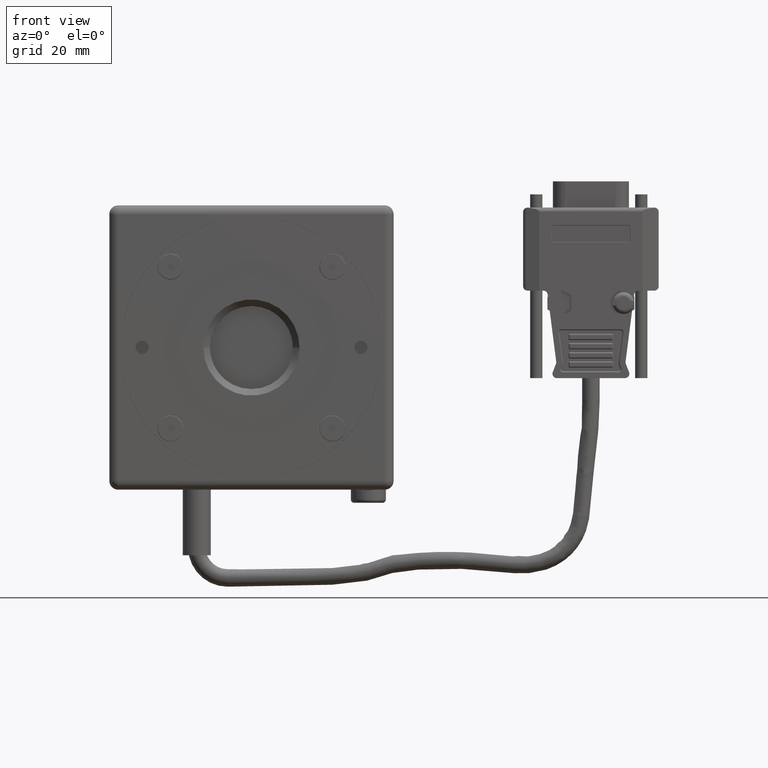
[diagram: clean part render]
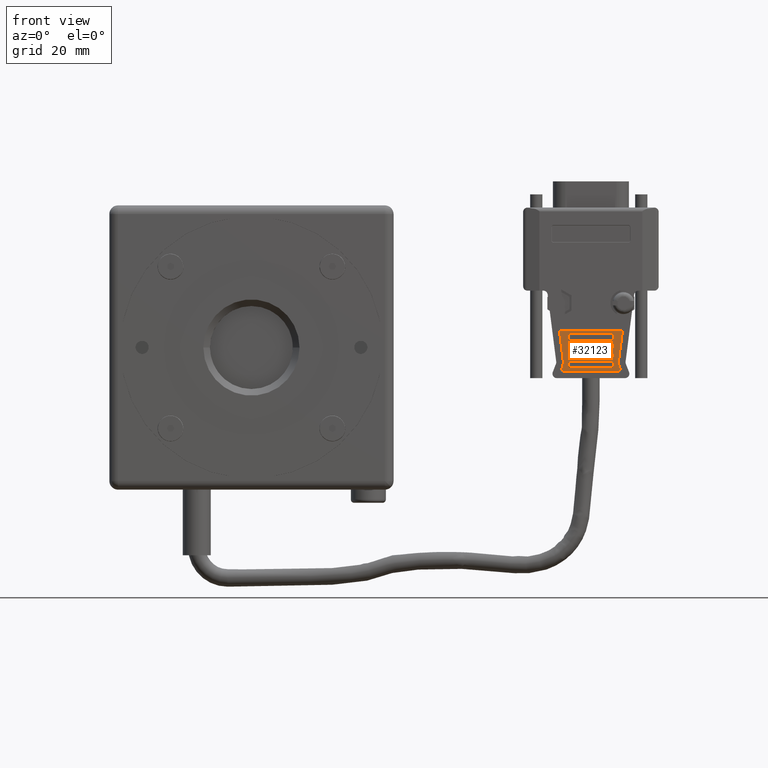
[diagram: same view with one face highlighted and labeled with its STEP entity id]
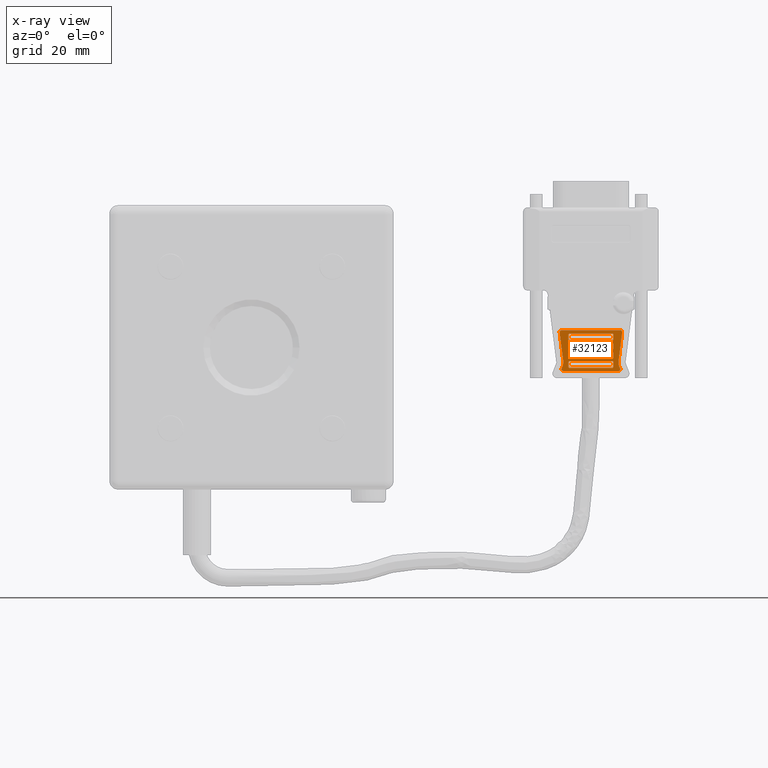
[diagram: x-ray of the same camera — body ghosted, the highlighted face saturated]
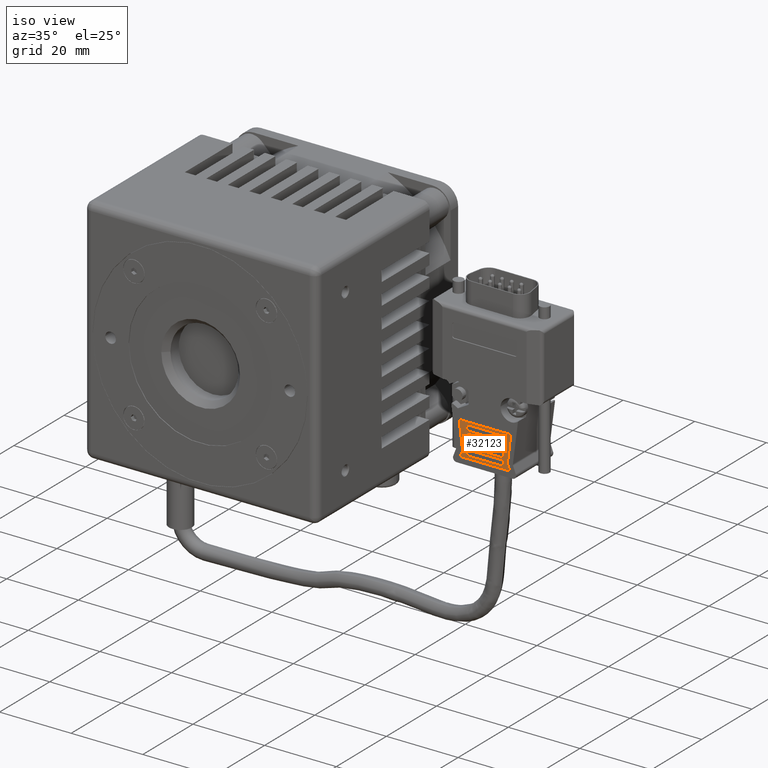
[diagram: same view with one face highlighted and labeled with its STEP entity id]
A machine part, front view. The second image highlights one B-rep face of the part: STEP entity #32123.
The next image is the same camera in x-ray: the body ghosted, the highlighted face saturated — about 0% of this face is hidden behind the body in this view.
A second angle (iso view) of the same face is appended — the face is thin or edge-on in the first view.
In plain terms, the highlighted planar face has unit normal (0, -1, 0).
Its self-contained STEP definition (entity closure, byte-faithful):
#9 = ORIENTED_EDGE ( 'NONE', *, *, #18562, .F. ) ;
#27 = DIRECTION ( 'NONE',  ( 0.000000000000000000, 1.000000000000000000, 0.000000000000000000 ) ) ;
#320 = CARTESIAN_POINT ( 'NONE',  ( 82.44909196436888976, 2.700000000000000178, -3.123188214215649960 ) ) ;
#542 = VECTOR ( 'NONE', #24441, 1000.000000000000114 ) ;
#671 = CARTESIAN_POINT ( 'NONE',  ( 82.70260010608919288, 2.700000000000000178, 1.007115293119899890 ) ) ;
#838 = EDGE_CURVE ( 'NONE', #18890, #22466, #35391, .T. ) ;
#904 = EDGE_CURVE ( 'NONE', #31604, #3951, #1273, .T. ) ;
#1060 = CARTESIAN_POINT ( 'NONE',  ( 82.44909196436938714, 2.700000000000000178, 1.076811785784349995 ) ) ;
#1114 = DIRECTION ( 'NONE',  ( -0.1262542796726679462, 0.000000000000000000, 0.9919979117237776034 ) ) ;
#1273 = LINE ( 'NONE', #36434, #39668 ) ;
#1545 = VERTEX_POINT ( 'NONE', #21794 ) ;
#1959 = B_SPLINE_CURVE_WITH_KNOTS ( 'NONE', 3,
 ( #27415, #18348, #15185, #37093, #31002 ),
 .UNSPECIFIED., .F., .F.,
 ( 4, 1, 4 ),
 ( 1.739055795549800029E-15, 0.02539840162488149825, 0.05079680324976119932 ),
 .UNSPECIFIED. ) ;
#2160 = VECTOR ( 'NONE', #20354, 1000.000000000000000 ) ;
#2185 = VERTEX_POINT ( 'NONE', #13410 ) ;
#2490 = CARTESIAN_POINT ( 'NONE',  ( 85.30056038381469818, 2.700000000000000178, 7.594317709665400429 ) ) ;
#3165 = CARTESIAN_POINT ( 'NONE',  ( 72.71055135265889646, 2.700000000000000178, -3.123188214215659730 ) ) ;
#3256 = EDGE_CURVE ( 'NONE', #21083, #21537, #27272, .T. ) ;
#3400 = CARTESIAN_POINT ( 'NONE',  ( 74.04217207136910872, 2.700000000000000178, 3.206717166536390273 ) ) ;
#3501 = CIRCLE ( 'NONE', #25692, 0.3803847577293482662 ) ;
#3512 = CARTESIAN_POINT ( 'NONE',  ( 82.77229704512579644, 2.700000000000000178, -4.339213618000540507 ) ) ;
#3666 = CARTESIAN_POINT ( 'NONE',  ( 82.77229704512579644, 2.700000000000000178, -4.339213618000540507 ) ) ;
#3782 = CARTESIAN_POINT ( 'NONE',  ( 72.47200761065160179, 2.700000000000000178, -3.446393294972040167 ) ) ;
#3822 = EDGE_CURVE ( 'NONE', #20085, #22674, #30910, .T. ) ;
#3942 = ORIENTED_EDGE ( 'NONE', *, *, #3822, .F. ) ;
#3951 = VERTEX_POINT ( 'NONE', #39534 ) ;
#4128 = DIRECTION ( 'NONE',  ( -0.7504179767545040569, 0.000000000000000000, 0.6609635845972732238 ) ) ;
#4279 = CARTESIAN_POINT ( 'NONE',  ( 82.44909196436888976, 2.700000000000000178, -2.562418698756979918 ) ) ;
#4315 = CARTESIAN_POINT ( 'NONE',  ( 82.77229704512579644, 2.700000000000000178, 8.230514021191238427 ) ) ;
#4339 = CARTESIAN_POINT ( 'NONE',  ( 72.54170407698350687, 2.700000000000000178, 3.107114873108239639 ) ) ;
#4370 = CARTESIAN_POINT ( 'NONE',  ( 82.77229704512579644, 2.700000000000000178, -1.346393294972539900 ) ) ;
#4480 = CARTESIAN_POINT ( 'NONE',  ( 72.79521269140801110, 2.700000000000000178, 1.076811785784340003 ) ) ;
#4557 = DIRECTION ( 'NONE',  ( 0.000000000000000000, -1.000000000000000000, 0.000000000000000000 ) ) ;
#4558 = CARTESIAN_POINT ( 'NONE',  ( 72.47200761065160179, 2.700000000000000178, -0.1392136180000810020 ) ) ;
#4823 = B_SPLINE_CURVE_WITH_KNOTS ( 'NONE', 3,
 ( #39088, #22469, #10239, #35910, #3512 ),
 .UNSPECIFIED., .F., .F.,
 ( 4, 1, 4 ),
 ( 4.116260013549320129E-33, 0.02539840162487739736, 0.05079680324975479472 ),
 .UNSPECIFIED. ) ;
#4830 = EDGE_LOOP ( 'NONE', ( #23595, #20390, #24953, #27848, #32639, #34149, #3942, #5043 ) ) ;
#4926 = EDGE_CURVE ( 'NONE', #3951, #18890, #3501, .T. ) ;
#5020 = EDGE_CURVE ( 'NONE', #24175, #1545, #5726, .T. ) ;
#5043 = ORIENTED_EDGE ( 'NONE', *, *, #9184, .F. ) ;
#5115 = EDGE_CURVE ( 'NONE', #32147, #2185, #32656, .T. ) ;
#5257 = DIRECTION ( 'NONE',  ( 1.000000000000000000, 0.000000000000000000, -8.618799168745898711E-17 ) ) ;
#5263 = ORIENTED_EDGE ( 'NONE', *, *, #40630, .F. ) ;
#5585 = CARTESIAN_POINT ( 'NONE',  ( 82.77229704512579644, 2.700000000000000178, -2.239213618000579942 ) ) ;
#5632 = CARTESIAN_POINT ( 'NONE',  ( 72.71055135265839908, 2.700000000000000178, -2.562418698756850244 ) ) ;
#5641 = EDGE_CURVE ( 'NONE', #17230, #27794, #37424, .T. ) ;
#5726 = LINE ( 'NONE', #18574, #14257 ) ;
#5920 = CARTESIAN_POINT ( 'NONE',  ( 72.47200761065160179, 2.700000000000000178, 1.876125043250320035 ) ) ;
#5952 = LINE ( 'NONE', #19647, #40351 ) ;
#6346 = EDGE_CURVE ( 'NONE', #23102, #27496, #31017, .T. ) ;
#6366 = CARTESIAN_POINT ( 'NONE',  ( 82.77229704512579644, 2.700000000000000178, 0.8382680437770479998 ) ) ;
#6532 = CARTESIAN_POINT ( 'NONE',  ( 84.10192827455099973, 2.700000000000000178, -4.311271660290279861 ) ) ;
#6703 = DIRECTION ( 'NONE',  ( 0.000000000000000000, 0.000000000000000000, -1.000000000000000000 ) ) ;
#6709 = VERTEX_POINT ( 'NONE', #18107 ) ;
#6928 = EDGE_CURVE ( 'NONE', #33162, #32722, #26283, .T. ) ;
#6948 = CARTESIAN_POINT ( 'NONE',  ( 72.47200761065170127, 2.700000000000000178, -3.361731956222449913 ) ) ;
#6965 = CARTESIAN_POINT ( 'NONE',  ( 72.47200761065170127, 2.700000000000000178, 4.630514021191230789 ) ) ;
#7002 = EDGE_CURVE ( 'NONE', #33224, #32649, #19338, .T. ) ;
#7111 = CARTESIAN_POINT ( 'NONE',  ( 70.93230020184201123, 2.700000000000000178, -4.855913607000769794 ) ) ;
#7150 = DIRECTION ( 'NONE',  ( 0.7504179767545079427, 0.000000000000000000, 0.6609635845972686718 ) ) ;
#7287 = VECTOR ( 'NONE', #24277, 1000.000000000000000 ) ;
#7359 = CARTESIAN_POINT ( 'NONE',  ( 82.77229704512579644, 2.700000000000000178, -0.1392136180005850155 ) ) ;
#7426 = CARTESIAN_POINT ( 'NONE',  ( 72.79521269140850848, 2.700000000000000178, -3.123188214215649960 ) ) ;
#7539 = ORIENTED_EDGE ( 'NONE', *, *, #9166, .F. ) ;
#7648 = DIRECTION ( 'NONE',  ( -9.868649107779170475E-15, 0.000000000000000000, -1.000000000000000000 ) ) ;
#7829 = VECTOR ( 'NONE', #24088, 1000.000000000000000 ) ;
#7898 = DIRECTION ( 'NONE',  ( -1.000000000000000000, 0.000000000000000000, 0.000000000000000000 ) ) ;
#8023 = DIRECTION ( 'NONE',  ( -1.000000000000000000, 0.000000000000000000, 1.178317357060010011E-12 ) ) ;
#8261 = CARTESIAN_POINT ( 'NONE',  ( 84.77426902767309969, 2.700000000000000178, 3.459171339911460308 ) ) ;
#8380 = VERTEX_POINT ( 'NONE', #15116 ) ;
#8495 = CARTESIAN_POINT ( 'NONE',  ( 72.47200761065170127, 2.700000000000000178, -1.261731956222539974 ) ) ;
#8525 = ORIENTED_EDGE ( 'NONE', *, *, #26338, .F. ) ;
#8582 = ORIENTED_EDGE ( 'NONE', *, *, #12566, .F. ) ;
#8652 = CARTESIAN_POINT ( 'NONE',  ( 82.77229704512579644, 2.700000000000000178, -1.346393294972539900 ) ) ;
#8847 = EDGE_CURVE ( 'NONE', #13585, #33162, #38489, .T. ) ;
#8866 = ORIENTED_EDGE ( 'NONE', *, *, #30942, .F. ) ;
#8884 = CARTESIAN_POINT ( 'NONE',  ( 82.44909196436888976, 2.700000000000000178, -3.123188214215649960 ) ) ;
#9003 = ORIENTED_EDGE ( 'NONE', *, *, #3256, .F. ) ;
#9166 = EDGE_CURVE ( 'NONE', #20459, #6709, #23867, .T. ) ;
#9184 = EDGE_CURVE ( 'NONE', #11511, #20085, #36493, .T. ) ;
#9305 = CARTESIAN_POINT ( 'NONE',  ( 72.54170451774228923, 2.700000000000000178, 1.707277761995610099 ) ) ;
#9315 = DIRECTION ( 'NONE',  ( -0.8245823391861011320, 0.000000000000000000, -0.5657419605282764108 ) ) ;
#9878 = CARTESIAN_POINT ( 'NONE',  ( 82.77229704512579644, 2.700000000000000178, 0.7536067050274590784 ) ) ;
#9923 = VERTEX_POINT ( 'NONE', #31181 ) ;
#9945 = CARTESIAN_POINT ( 'NONE',  ( 82.77229704512579644, 2.700000000000000178, 0.7536067050274590784 ) ) ;
#9954 = VERTEX_POINT ( 'NONE', #21908 ) ;
#10239 = CARTESIAN_POINT ( 'NONE',  ( 82.70260054171910724, 2.700000000000000178, -4.592721748966200224 ) ) ;
#10338 = FACE_BOUND ( 'NONE', #4830, .T. ) ;
#10389 = EDGE_CURVE ( 'NONE', #34865, #31777, #21666, .T. ) ;
#10669 = DIRECTION ( 'NONE',  ( -0.9927162448375094206, 0.000000000000000000, -0.1204759612358992094 ) ) ;
#10792 = ORIENTED_EDGE ( 'NONE', *, *, #17807, .F. ) ;
#10946 = DIRECTION ( 'NONE',  ( 1.000000000000000000, 0.000000000000000000, 2.872933056248629617E-17 ) ) ;
#10957 = EDGE_LOOP ( 'NONE', ( #13677, #14443, #23103, #41669, #8525, #36402, #30400, #17669 ) ) ;
#11511 = VERTEX_POINT ( 'NONE', #41225 ) ;
#11690 = CARTESIAN_POINT ( 'NONE',  ( 82.77229704512568276, 2.700000000000000178, -2.323874956750170195 ) ) ;
#11787 = CARTESIAN_POINT ( 'NONE',  ( 82.53375330311899916, 2.700000000000000178, 3.176811785784219744 ) ) ;
#12102 = VERTEX_POINT ( 'NONE', #29166 ) ;
#12222 = CIRCLE ( 'NONE', #26359, 0.3803847577293278381 ) ;
#12329 = DIRECTION ( 'NONE',  ( -1.000000000000000000, 0.000000000000000000, 0.000000000000000000 ) ) ;
#12453 = ORIENTED_EDGE ( 'NONE', *, *, #838, .F. ) ;
#12566 = EDGE_CURVE ( 'NONE', #17790, #14059, #5952, .T. ) ;
#12781 = CARTESIAN_POINT ( 'NONE',  ( 72.54170452099710076, 2.700000000000000178, -2.492722234753269817 ) ) ;
#12885 = CIRCLE ( 'NONE', #16256, 2.619615242287314238 ) ;
#13004 = ORIENTED_EDGE ( 'NONE', *, *, #23831, .F. ) ;
#13022 = CARTESIAN_POINT ( 'NONE',  ( 72.47200761065160179, 2.700000000000000178, 1.960786381999910066 ) ) ;
#13062 = VECTOR ( 'NONE', #37357, 1000.000000000000000 ) ;
#13343 = VECTOR ( 'NONE', #10946, 1000.000000000000000 ) ;
#13410 = CARTESIAN_POINT ( 'NONE',  ( 72.47200761065160179, 2.700000000000000178, -4.339213618000079542 ) ) ;
#13585 = VERTEX_POINT ( 'NONE', #4279 ) ;
#13675 = ORIENTED_EDGE ( 'NONE', *, *, #39497, .F. ) ;
#13677 = ORIENTED_EDGE ( 'NONE', *, *, #41057, .F. ) ;
#13924 = EDGE_CURVE ( 'NONE', #32649, #23102, #14501, .T. ) ;
#14059 = VERTEX_POINT ( 'NONE', #32876 ) ;
#14091 = CARTESIAN_POINT ( 'NONE',  ( 82.44909196436888976, 2.700000000000000178, -0.4624186987569779972 ) ) ;
#14257 = VECTOR ( 'NONE', #31423, 1000.000000000000000 ) ;
#14346 = FACE_BOUND ( 'NONE', #36842, .T. ) ;
#14387 = CARTESIAN_POINT ( 'NONE',  ( 72.47200761065160179, 2.700000000000000178, 0.7536067050279570134 ) ) ;
#14443 = ORIENTED_EDGE ( 'NONE', *, *, #6346, .F. ) ;
#14501 = B_SPLINE_CURVE_WITH_KNOTS ( 'NONE', 3,
 ( #9945, #6366, #671, #39002, #25313 ),
 .UNSPECIFIED., .F., .F.,
 ( 4, 1, 4 ),
 ( 1.086390228899419965E-15, 0.02539840162487999944, 0.05079680324975899969 ),
 .UNSPECIFIED. ) ;
#14650 = CARTESIAN_POINT ( 'NONE',  ( 82.77229704512579644, 2.700000000000000178, -2.239213618000579942 ) ) ;
#14745 = VERTEX_POINT ( 'NONE', #33347 ) ;
#14765 = ORIENTED_EDGE ( 'NONE', *, *, #5641, .F. ) ;
#14938 = CARTESIAN_POINT ( 'NONE',  ( 72.47200761065160179, 2.700000000000000178, -2.239213618000090111 ) ) ;
#14960 = LINE ( 'NONE', #27178, #542 ) ;
#15062 = CARTESIAN_POINT ( 'NONE',  ( 82.53375330311850178, 2.700000000000000178, -2.562418698756979918 ) ) ;
#15116 = CARTESIAN_POINT ( 'NONE',  ( 84.31200445393540122, 2.700000000000000178, -4.855913607000769794 ) ) ;
#15133 = ORIENTED_EDGE ( 'NONE', *, *, #21788, .F. ) ;
#15165 = CARTESIAN_POINT ( 'NONE',  ( 82.70260010466489575, 2.700000000000000178, -1.092884708302980012 ) ) ;
#15185 = CARTESIAN_POINT ( 'NONE',  ( 72.54170451274708853, 2.700000000000000178, -0.3927222429944329796 ) ) ;
#15522 = CARTESIAN_POINT ( 'NONE',  ( 72.79521269140801110, 2.700000000000000178, 1.637581301243020038 ) ) ;
#15714 = VERTEX_POINT ( 'NONE', #14938 ) ;
#15724 = CARTESIAN_POINT ( 'NONE',  ( 72.47200761065160179, 2.700000000000000178, -2.323874956749679921 ) ) ;
#15994 = ORIENTED_EDGE ( 'NONE', *, *, #40617, .F. ) ;
#16038 = VERTEX_POINT ( 'NONE', #40571 ) ;
#16092 = CIRCLE ( 'NONE', #19466, 2.619615242287306689 ) ;
#16243 = DIRECTION ( 'NONE',  ( 0.3598720681994608817, 0.000000000000000000, 0.9330016583746475467 ) ) ;
#16256 = AXIS2_PLACEMENT_3D ( 'NONE', #16756, #26252, #32372 ) ;
#16397 = CARTESIAN_POINT ( 'NONE',  ( 82.77229704512579644, 2.700000000000000178, 1.960786381999420236 ) ) ;
#16474 = VECTOR ( 'NONE', #33282, 1000.000000000000000 ) ;
#16499 = EDGE_CURVE ( 'NONE', #21537, #32147, #41276, .T. ) ;
#16708 = EDGE_CURVE ( 'NONE', #22674, #12102, #33251, .T. ) ;
#16756 = CARTESIAN_POINT ( 'NONE',  ( 68.69827101585771345, 2.700000000000000178, -3.368545305190319805 ) ) ;
#16992 = VERTEX_POINT ( 'NONE', #4558 ) ;
#17230 = VERTEX_POINT ( 'NONE', #3666 ) ;
#17302 = EDGE_CURVE ( 'NONE', #19322, #34865, #37575, .T. ) ;
#17320 = VERTEX_POINT ( 'NONE', #6532 ) ;
#17331 = CARTESIAN_POINT ( 'NONE',  ( 70.25321923480629493, 2.700000000000000178, 5.162728715841659266 ) ) ;
#17549 = CARTESIAN_POINT ( 'NONE',  ( 72.79521269140801110, 2.700000000000000178, -1.023188214215659864 ) ) ;
#17553 = CARTESIAN_POINT ( 'NONE',  ( 72.47200761065160179, 2.700000000000000178, 7.780514021191230256 ) ) ;
#17566 = LINE ( 'NONE', #29977, #7829 ) ;
#17669 = ORIENTED_EDGE ( 'NONE', *, *, #36385, .F. ) ;
#17772 = EDGE_CURVE ( 'NONE', #9954, #11511, #33043, .T. ) ;
#17790 = VERTEX_POINT ( 'NONE', #23737 ) ;
#17807 = EDGE_CURVE ( 'NONE', #31777, #17320, #16092, .T. ) ;
#17843 = CARTESIAN_POINT ( 'NONE',  ( 72.79521269140801110, 2.700000000000000178, -4.662418698756980007 ) ) ;
#18033 = VECTOR ( 'NONE', #35456, 1000.000000000000000 ) ;
#18107 = CARTESIAN_POINT ( 'NONE',  ( 70.47003562810438382, 2.700000000000000178, 3.459171339911460308 ) ) ;
#18284 = CARTESIAN_POINT ( 'NONE',  ( 72.47200761065160179, 2.700000000000000178, -2.239213618000090111 ) ) ;
#18327 = CARTESIAN_POINT ( 'NONE',  ( 82.77229704512579644, 2.700000000000000178, -1.261731956222949869 ) ) ;
#18348 = CARTESIAN_POINT ( 'NONE',  ( 72.47200761065160179, 2.700000000000000178, -0.2238749567496879922 ) ) ;
#18562 = EDGE_CURVE ( 'NONE', #14745, #13585, #27601, .T. ) ;
#18574 = CARTESIAN_POINT ( 'NONE',  ( 76.77618048058810984, 2.700000000000000178, -4.662418698756959579 ) ) ;
#18772 = CARTESIAN_POINT ( 'NONE',  ( 72.79521269140801110, 2.700000000000000178, 1.637581301243020038 ) ) ;
#18874 = LINE ( 'NONE', #41189, #28220 ) ;
#18890 = VERTEX_POINT ( 'NONE', #7111 ) ;
#19017 = B_SPLINE_CURVE_WITH_KNOTS ( 'NONE', 3,
 ( #40868, #33925, #24666, #30780, #8884 ),
 .UNSPECIFIED., .F., .F.,
 ( 4, 1, 4 ),
 ( 1.832030531312000143E-15, 0.02539840162490549988, 0.05079680324980909850 ),
 .UNSPECIFIED. ) ;
#19072 = ORIENTED_EDGE ( 'NONE', *, *, #5020, .F. ) ;
#19127 = VERTEX_POINT ( 'NONE', #21224 ) ;
#19176 = CARTESIAN_POINT ( 'NONE',  ( 84.39692814235399965, 2.700000000000000178, 3.507196543497050012 ) ) ;
#19177 = CARTESIAN_POINT ( 'NONE',  ( 72.79521269140850848, 2.700000000000000178, -3.123188214215649960 ) ) ;
#19240 = EDGE_LOOP ( 'NONE', ( #33479, #26124, #15133, #31177, #10792, #32569, #41200, #28250, #28656, #7539, #15994, #12453 ) ) ;
#19322 = VERTEX_POINT ( 'NONE', #19714 ) ;
#19330 = ORIENTED_EDGE ( 'NONE', *, *, #16499, .F. ) ;
#19338 = LINE ( 'NONE', #39316, #33945 ) ;
#19413 = VERTEX_POINT ( 'NONE', #34421 ) ;
#19466 = AXIS2_PLACEMENT_3D ( 'NONE', #39743, #4557, #10669 ) ;
#19579 = CARTESIAN_POINT ( 'NONE',  ( 82.77229704512568276, 2.700000000000000178, 1.876125043249830204 ) ) ;
#19647 = CARTESIAN_POINT ( 'NONE',  ( 71.94565100562159898, 2.700000000000000178, -1.023188214215649872 ) ) ;
#19656 = CARTESIAN_POINT ( 'NONE',  ( 72.79521269140801110, 2.700000000000000178, 1.076811785784340003 ) ) ;
#19714 = CARTESIAN_POINT ( 'NONE',  ( 84.39692814235399965, 2.700000000000000178, 3.887581301226379793 ) ) ;
#19758 = EDGE_CURVE ( 'NONE', #17320, #8380, #14960, .T. ) ;
#19980 = EDGE_CURVE ( 'NONE', #32722, #17790, #23930, .T. ) ;
#20042 = CARTESIAN_POINT ( 'NONE',  ( 77.62215232788929598, 2.700000000000000178, -0.6127071908090540031 ) ) ;
#20085 = VERTEX_POINT ( 'NONE', #13022 ) ;
#20354 = DIRECTION ( 'NONE',  ( 0.000000000000000000, 0.000000000000000000, 1.000000000000000000 ) ) ;
#20376 = CARTESIAN_POINT ( 'NONE',  ( 72.79521269140801110, 2.700000000000000178, 3.176811785784349862 ) ) ;
#20390 = ORIENTED_EDGE ( 'NONE', *, *, #21151, .F. ) ;
#20459 = VERTEX_POINT ( 'NONE', #22465 ) ;
#20787 = VECTOR ( 'NONE', #34683, 1000.000000000000114 ) ;
#20908 = VECTOR ( 'NONE', #7648, 1000.000000000000000 ) ;
#21083 = VERTEX_POINT ( 'NONE', #320 ) ;
#21151 = EDGE_CURVE ( 'NONE', #35767, #9954, #18874, .T. ) ;
#21191 = CARTESIAN_POINT ( 'NONE',  ( 82.77229704512579644, 2.700000000000000178, -0.1392136180005850155 ) ) ;
#21224 = CARTESIAN_POINT ( 'NONE',  ( 82.44909196436888976, 2.700000000000000178, -0.4624186987569779972 ) ) ;
#21316 = ORIENTED_EDGE ( 'NONE', *, *, #27960, .F. ) ;
#21339 = VECTOR ( 'NONE', #5257, 1000.000000000000000 ) ;
#21537 = VERTEX_POINT ( 'NONE', #7426 ) ;
#21641 = CARTESIAN_POINT ( 'NONE',  ( 72.47200761065160179, 2.700000000000000178, -4.339213618000079542 ) ) ;
#21666 = LINE ( 'NONE', #2490, #20787 ) ;
#21788 = EDGE_CURVE ( 'NONE', #8380, #31604, #23467, .T. ) ;
#21794 = CARTESIAN_POINT ( 'NONE',  ( 82.44909196436888976, 2.700000000000000178, -4.662418698756919611 ) ) ;
#21863 = LINE ( 'NONE', #28389, #30782 ) ;
#21908 = CARTESIAN_POINT ( 'NONE',  ( 72.79521269140801110, 2.700000000000000178, 3.176811785784349862 ) ) ;
#21933 = DIRECTION ( 'NONE',  ( 0.8245823391860934715, 0.000000000000000000, -0.5657419605282872910 ) ) ;
#22047 = EDGE_CURVE ( 'NONE', #16038, #35767, #36278, .T. ) ;
#22347 = B_SPLINE_CURVE_WITH_KNOTS ( 'NONE', 3,
 ( #4480, #36918, #36279, #27248, #14387 ),
 .UNSPECIFIED., .F., .F.,
 ( 4, 1, 4 ),
 ( 0.000000000000000000, 0.02539840162485280245, 0.05079680324970569510 ),
 .UNSPECIFIED. ) ;
#22416 = CARTESIAN_POINT ( 'NONE',  ( 82.77229704512579644, 2.700000000000000178, 5.080514021191239848 ) ) ;
#22465 = CARTESIAN_POINT ( 'NONE',  ( 71.29692386567279527, 2.700000000000000178, -3.037807669333600025 ) ) ;
#22466 = VERTEX_POINT ( 'NONE', #30291 ) ;
#22469 = CARTESIAN_POINT ( 'NONE',  ( 82.53375330311850178, 2.700000000000000178, -4.662418698756929381 ) ) ;
#22474 = DIRECTION ( 'NONE',  ( 0.000000000000000000, 1.000000000000000000, 0.000000000000000000 ) ) ;
#22674 = VERTEX_POINT ( 'NONE', #15522 ) ;
#22719 = CARTESIAN_POINT ( 'NONE',  ( 82.44909196436888976, 2.700000000000000178, 1.637581301243020038 ) ) ;
#22984 = DIRECTION ( 'NONE',  ( -9.868649107779181519E-15, 0.000000000000000000, -1.000000000000000000 ) ) ;
#23102 = VERTEX_POINT ( 'NONE', #1060 ) ;
#23103 = ORIENTED_EDGE ( 'NONE', *, *, #13924, .F. ) ;
#23186 = PLANE ( 'NONE',  #41456 ) ;
#23362 = CARTESIAN_POINT ( 'NONE',  ( 82.77229704512568276, 2.699999999999950440, -0.2238749567501659710 ) ) ;
#23391 = CARTESIAN_POINT ( 'NONE',  ( 72.47200761065170127, 2.700000000000000178, 5.680514021191230611 ) ) ;
#23467 = CIRCLE ( 'NONE', #33576, 0.3803847577293517634 ) ;
#23595 = ORIENTED_EDGE ( 'NONE', *, *, #17772, .F. ) ;
#23598 = EDGE_CURVE ( 'NONE', #12102, #19413, #33137, .T. ) ;
#23737 = CARTESIAN_POINT ( 'NONE',  ( 82.44909196436938714, 2.700000000000000178, -1.023188214215659864 ) ) ;
#23831 = EDGE_CURVE ( 'NONE', #15714, #14745, #33684, .T. ) ;
#23867 = LINE ( 'NONE', #17331, #39038 ) ;
#23930 = B_SPLINE_CURVE_WITH_KNOTS ( 'NONE', 3,
 ( #8652, #18327, #15165, #40844, #37677 ),
 .UNSPECIFIED., .F., .F.,
 ( 4, 1, 4 ),
 ( 1.669929007653000048E-15, 0.02539840162488029782, 0.05079680324975899969 ),
 .UNSPECIFIED. ) ;
#24088 = DIRECTION ( 'NONE',  ( 1.000000000000000000, 0.000000000000000000, -2.011053139374039992E-16 ) ) ;
#24093 = EDGE_CURVE ( 'NONE', #19413, #16038, #37174, .T. ) ;
#24158 = AXIS2_PLACEMENT_3D ( 'NONE', #19176, #26119, #7150 ) ;
#24175 = VERTEX_POINT ( 'NONE', #36333 ) ;
#24277 = DIRECTION ( 'NONE',  ( -1.000000000000000000, 0.000000000000000000, 1.436466528124319985E-16 ) ) ;
#24384 = CARTESIAN_POINT ( 'NONE',  ( 72.47200761065160179, 2.700000000000000178, -4.423874956749670240 ) ) ;
#24435 = CARTESIAN_POINT ( 'NONE',  ( 82.77229704512579644, 2.700000000000000178, 2.853606705027460055 ) ) ;
#24441 = DIRECTION ( 'NONE',  ( 0.3598720681908499364, 0.000000000000000000, -0.9330016583779688899 ) ) ;
#24553 = VERTEX_POINT ( 'NONE', #30611 ) ;
#24666 = CARTESIAN_POINT ( 'NONE',  ( 82.70260009832730930, 2.700000000000000178, -3.192884714633109855 ) ) ;
#24885 = VECTOR ( 'NONE', #16243, 999.9999999999998863 ) ;
#24901 = EDGE_CURVE ( 'NONE', #27794, #21083, #19017, .T. ) ;
#24951 = EDGE_CURVE ( 'NONE', #16992, #35591, #1959, .T. ) ;
#24953 = ORIENTED_EDGE ( 'NONE', *, *, #22047, .F. ) ;
#25202 = B_SPLINE_CURVE_WITH_KNOTS ( 'NONE', 3,
 ( #21641, #24384, #27755, #34037, #17843 ),
 .UNSPECIFIED., .F., .F.,
 ( 4, 1, 4 ),
 ( 3.614314001249209880E-16, 0.02539840162487919453, 0.05079680324975799355 ),
 .UNSPECIFIED. ) ;
#25313 = CARTESIAN_POINT ( 'NONE',  ( 82.44909196436938714, 2.700000000000000178, 1.076811785784349995 ) ) ;
#25493 = CARTESIAN_POINT ( 'NONE',  ( 72.54170407709268886, 2.700000000000000178, -3.192885127000729906 ) ) ;
#25664 = CARTESIAN_POINT ( 'NONE',  ( 82.77229704512579644, 2.700000000000000178, -3.446393294972540211 ) ) ;
#25692 = AXIS2_PLACEMENT_3D ( 'NONE', #41510, #31034, #9315 ) ;
#25963 = VERTEX_POINT ( 'NONE', #27213 ) ;
#26119 = DIRECTION ( 'NONE',  ( 0.000000000000000000, 1.000000000000000000, 0.000000000000000000 ) ) ;
#26124 = ORIENTED_EDGE ( 'NONE', *, *, #904, .F. ) ;
#26252 = DIRECTION ( 'NONE',  ( 0.000000000000000000, -1.000000000000000000, 0.000000000000000000 ) ) ;
#26283 = LINE ( 'NONE', #39119, #30114 ) ;
#26328 = CARTESIAN_POINT ( 'NONE',  ( 82.53375330311850178, 2.700000000000000178, -0.4624186987569809948 ) ) ;
#26338 = EDGE_CURVE ( 'NONE', #19127, #33224, #32512, .T. ) ;
#26359 = AXIS2_PLACEMENT_3D ( 'NONE', #36113, #22474, #4128 ) ;
#26482 = DIRECTION ( 'NONE',  ( 0.000000000000000000, 0.000000000000000000, 1.000000000000000000 ) ) ;
#26767 = FACE_OUTER_BOUND ( 'NONE', #19240, .T. ) ;
#26781 = DIRECTION ( 'NONE',  ( -1.000000000000000000, 0.000000000000000000, 8.618799168745898711E-17 ) ) ;
#27055 = VECTOR ( 'NONE', #22984, 1000.000000000000000 ) ;
#27178 = CARTESIAN_POINT ( 'NONE',  ( 80.25238265612780708, 2.700000000000000178, 5.669031795911790184 ) ) ;
#27182 = VECTOR ( 'NONE', #7898, 1000.000000000000000 ) ;
#27213 = CARTESIAN_POINT ( 'NONE',  ( 72.47200761065160179, 2.700000000000000178, -1.346393294972039856 ) ) ;
#27248 = CARTESIAN_POINT ( 'NONE',  ( 72.47200761065170127, 2.700000000000000178, 0.8382680437774620019 ) ) ;
#27250 = CARTESIAN_POINT ( 'NONE',  ( 83.94738079014250332, 2.700000000000000178, -3.037807669366860086 ) ) ;
#27272 = LINE ( 'NONE', #37354, #27182 ) ;
#27415 = CARTESIAN_POINT ( 'NONE',  ( 72.47200761065160179, 2.700000000000000178, -0.1392136180000810020 ) ) ;
#27496 = VERTEX_POINT ( 'NONE', #19656 ) ;
#27601 = LINE ( 'NONE', #40006, #21339 ) ;
#27755 = CARTESIAN_POINT ( 'NONE',  ( 72.54170452881500353, 2.700000000000000178, -4.592722226943458885 ) ) ;
#27794 = VERTEX_POINT ( 'NONE', #25664 ) ;
#27848 = ORIENTED_EDGE ( 'NONE', *, *, #24093, .F. ) ;
#27960 = EDGE_CURVE ( 'NONE', #2185, #24175, #25202, .T. ) ;
#28112 = CARTESIAN_POINT ( 'NONE',  ( 82.44909196436888976, 2.700000000000000178, -2.562418698756979918 ) ) ;
#28220 = VECTOR ( 'NONE', #12329, 1000.000000000000000 ) ;
#28250 = ORIENTED_EDGE ( 'NONE', *, *, #28350, .F. ) ;
#28350 = EDGE_CURVE ( 'NONE', #9923, #19322, #33590, .T. ) ;
#28389 = CARTESIAN_POINT ( 'NONE',  ( 72.47200761065170127, 2.700000000000000178, 6.730514021191230434 ) ) ;
#28656 = ORIENTED_EDGE ( 'NONE', *, *, #41602, .F. ) ;
#29166 = CARTESIAN_POINT ( 'NONE',  ( 82.44909196436888976, 2.700000000000000178, 1.637581301243020038 ) ) ;
#29232 = DIRECTION ( 'NONE',  ( 0.000000000000000000, 0.000000000000000000, 1.000000000000000000 ) ) ;
#29382 = ORIENTED_EDGE ( 'NONE', *, *, #5115, .F. ) ;
#29433 = DIRECTION ( 'NONE',  ( 0.000000000000000000, -1.000000000000000000, 0.000000000000000000 ) ) ;
#29890 = CARTESIAN_POINT ( 'NONE',  ( 76.77618048058799616, 2.700000000000000178, 1.637581301243020038 ) ) ;
#29977 = CARTESIAN_POINT ( 'NONE',  ( 76.77618048058799616, 2.700000000000000178, -0.4624186987569769980 ) ) ;
#30048 = CARTESIAN_POINT ( 'NONE',  ( 72.47200761065160179, 2.700000000000000178, 2.853606705027960100 ) ) ;
#30114 = VECTOR ( 'NONE', #26482, 1000.000000000000000 ) ;
#30291 = CARTESIAN_POINT ( 'NONE',  ( 71.14237638126330410, 2.700000000000000178, -4.311271660306440268 ) ) ;
#30400 = ORIENTED_EDGE ( 'NONE', *, *, #24951, .F. ) ;
#30601 = CARTESIAN_POINT ( 'NONE',  ( 72.54170406898589363, 2.700000000000000178, -1.092885118887290119 ) ) ;
#30611 = CARTESIAN_POINT ( 'NONE',  ( 72.47200761065160179, 2.700000000000000178, 0.7536067050279570134 ) ) ;
#30780 = CARTESIAN_POINT ( 'NONE',  ( 82.53375330311860125, 2.700000000000000178, -3.123188214215649960 ) ) ;
#30782 = VECTOR ( 'NONE', #41222, 1000.000000000000000 ) ;
#30910 = B_SPLINE_CURVE_WITH_KNOTS ( 'NONE', 3,
 ( #34761, #5920, #9305, #34983, #18772 ),
 .UNSPECIFIED., .F., .F.,
 ( 4, 1, 4 ),
 ( 0.000000000000000000, 0.02539840162487739736, 0.05079680324975479472 ),
 .UNSPECIFIED. ) ;
#30942 = EDGE_CURVE ( 'NONE', #25963, #15714, #39187, .T. ) ;
#31002 = CARTESIAN_POINT ( 'NONE',  ( 72.79521269140801110, 2.700000000000000178, -0.4624186987569779972 ) ) ;
#31017 = LINE ( 'NONE', #37106, #7287 ) ;
#31034 = DIRECTION ( 'NONE',  ( 0.000000000000000000, 1.000000000000000000, 0.000000000000000000 ) ) ;
#31071 = CARTESIAN_POINT ( 'NONE',  ( 70.97352783587210467, 2.700000000000000178, 3.887581301226379793 ) ) ;
#31177 = ORIENTED_EDGE ( 'NONE', *, *, #19758, .F. ) ;
#31181 = CARTESIAN_POINT ( 'NONE',  ( 70.84737651342339859, 2.700000000000000178, 3.887581301226379793 ) ) ;
#31203 = EDGE_LOOP ( 'NONE', ( #13675, #8582, #36203, #37185, #31707, #9, #13004, #8866 ) ) ;
#31423 = DIRECTION ( 'NONE',  ( 1.000000000000000000, 0.000000000000000000, 5.286196823497490131E-15 ) ) ;
#31604 = VERTEX_POINT ( 'NONE', #35675 ) ;
#31707 = ORIENTED_EDGE ( 'NONE', *, *, #8847, .F. ) ;
#31777 = VERTEX_POINT ( 'NONE', #27250 ) ;
#31880 = ORIENTED_EDGE ( 'NONE', *, *, #24901, .F. ) ;
#32031 = CARTESIAN_POINT ( 'NONE',  ( 83.95710484415231178, 2.700000000000000178, -4.992803456473099644 ) ) ;
#32123 = ADVANCED_FACE ( 'NONE', ( #26767, #39612, #14346, #40035, #10338 ), #23186, .T. ) ;
#32147 = VERTEX_POINT ( 'NONE', #38706 ) ;
#32372 = DIRECTION ( 'NONE',  ( 0.9927162448376125603, 0.000000000000000000, -0.1204759612350497638 ) ) ;
#32512 = B_SPLINE_CURVE_WITH_KNOTS ( 'NONE', 3,
 ( #14091, #26328, #36194, #23362, #7359 ),
 .UNSPECIFIED., .F., .F.,
 ( 4, 1, 4 ),
 ( 1.245624370957980176E-15, 0.02539840162487719960, 0.05079680324975320571 ),
 .UNSPECIFIED. ) ;
#32569 = ORIENTED_EDGE ( 'NONE', *, *, #10389, .F. ) ;
#32639 = ORIENTED_EDGE ( 'NONE', *, *, #23598, .F. ) ;
#32649 = VERTEX_POINT ( 'NONE', #9878 ) ;
#32656 = LINE ( 'NONE', #6965, #27055 ) ;
#32722 = VERTEX_POINT ( 'NONE', #4370 ) ;
#32876 = CARTESIAN_POINT ( 'NONE',  ( 72.79521269140801110, 2.700000000000000178, -1.023188214215659864 ) ) ;
#33043 = B_SPLINE_CURVE_WITH_KNOTS ( 'NONE', 3,
 ( #20376, #33404, #4339, #36361, #30048 ),
 .UNSPECIFIED., .F., .F.,
 ( 4, 1, 4 ),
 ( 0.000000000000000000, 0.02539840162485459962, 0.05079680324970919925 ),
 .UNSPECIFIED. ) ;
#33137 = B_SPLINE_CURVE_WITH_KNOTS ( 'NONE', 3,
 ( #22719, #33218, #35553, #19579, #16397 ),
 .UNSPECIFIED., .F., .F.,
 ( 4, 1, 4 ),
 ( 1.568295065162730074E-30, 0.02539840162487690123, 0.05079680324975369837 ),
 .UNSPECIFIED. ) ;
#33162 = VERTEX_POINT ( 'NONE', #14650 ) ;
#33218 = CARTESIAN_POINT ( 'NONE',  ( 82.53375330311850178, 2.700000000000000178, 1.637581301243020038 ) ) ;
#33224 = VERTEX_POINT ( 'NONE', #21191 ) ;
#33251 = LINE ( 'NONE', #29890, #13343 ) ;
#33282 = DIRECTION ( 'NONE',  ( -9.868649107779170475E-15, 0.000000000000000000, -1.000000000000000000 ) ) ;
#33347 = CARTESIAN_POINT ( 'NONE',  ( 72.79521269140801110, 2.700000000000000178, -2.562418698756979918 ) ) ;
#33404 = CARTESIAN_POINT ( 'NONE',  ( 72.71055135265849856, 2.700000000000000178, 3.176811785784229514 ) ) ;
#33476 = CARTESIAN_POINT ( 'NONE',  ( 82.70260009968519910, 2.700000000000000178, 3.107115286722819558 ) ) ;
#33479 = ORIENTED_EDGE ( 'NONE', *, *, #4926, .F. ) ;
#33576 = AXIS2_PLACEMENT_3D ( 'NONE', #32031, #27, #21933 ) ;
#33590 = LINE ( 'NONE', #31071, #13062 ) ;
#33642 = EDGE_CURVE ( 'NONE', #35591, #19127, #17566, .T. ) ;
#33684 = B_SPLINE_CURVE_WITH_KNOTS ( 'NONE', 3,
 ( #18284, #15724, #12781, #5632, #37630 ),
 .UNSPECIFIED., .F., .F.,
 ( 4, 1, 4 ),
 ( 1.465350096975980033E-15, 0.02539840162488059966, 0.05079680324975979766 ),
 .UNSPECIFIED. ) ;
#33700 = CARTESIAN_POINT ( 'NONE',  ( 82.44909196436938714, 2.700000000000000178, 3.176811785784349862 ) ) ;
#33925 = CARTESIAN_POINT ( 'NONE',  ( 82.77229704512579644, 2.700000000000000178, -3.361731956222879791 ) ) ;
#33945 = VECTOR ( 'NONE', #29232, 1000.000000000000000 ) ;
#34037 = CARTESIAN_POINT ( 'NONE',  ( 72.71055135265839908, 2.700000000000000178, -4.662418698756850333 ) ) ;
#34094 = CARTESIAN_POINT ( 'NONE',  ( 82.77229704512579644, 2.700000000000000178, 2.938268043777039651 ) ) ;
#34149 = ORIENTED_EDGE ( 'NONE', *, *, #16708, .F. ) ;
#34158 = CARTESIAN_POINT ( 'NONE',  ( 72.47200761065160179, 2.700000000000000178, -1.346393294972039856 ) ) ;
#34421 = CARTESIAN_POINT ( 'NONE',  ( 82.77229704512579644, 2.700000000000000178, 1.960786381999420236 ) ) ;
#34683 = DIRECTION ( 'NONE',  ( -0.1262542796718239824, 0.000000000000000000, -0.9919979117238850730 ) ) ;
#34761 = CARTESIAN_POINT ( 'NONE',  ( 72.47200761065160179, 2.700000000000000178, 1.960786381999910066 ) ) ;
#34865 = VERTEX_POINT ( 'NONE', #8261 ) ;
#34983 = CARTESIAN_POINT ( 'NONE',  ( 72.71055135265839908, 2.700000000000000178, 1.637581301243149934 ) ) ;
#35041 = CARTESIAN_POINT ( 'NONE',  ( 82.70260054790399806, 2.700000000000000178, -2.492721755158270103 ) ) ;
#35391 = LINE ( 'NONE', #3400, #24885 ) ;
#35456 = DIRECTION ( 'NONE',  ( 0.000000000000000000, 0.000000000000000000, 1.000000000000000000 ) ) ;
#35553 = CARTESIAN_POINT ( 'NONE',  ( 82.70260054915490855, 2.700000000000000178, 1.707278243589589906 ) ) ;
#35591 = VERTEX_POINT ( 'NONE', #36718 ) ;
#35675 = CARTESIAN_POINT ( 'NONE',  ( 83.95710484415400288, 2.700000000000000178, -5.373188214202450297 ) ) ;
#35767 = VERTEX_POINT ( 'NONE', #38996 ) ;
#35910 = CARTESIAN_POINT ( 'NONE',  ( 82.77229704512568276, 2.700000000000000178, -4.423874956750130316 ) ) ;
#36113 = CARTESIAN_POINT ( 'NONE',  ( 70.84737651342339859, 2.700000000000000178, 3.507196543497050012 ) ) ;
#36194 = CARTESIAN_POINT ( 'NONE',  ( 82.70260055439250380, 2.700000000000000178, -0.3927217616532470146 ) ) ;
#36203 = ORIENTED_EDGE ( 'NONE', *, *, #19980, .F. ) ;
#36278 = B_SPLINE_CURVE_WITH_KNOTS ( 'NONE', 3,
 ( #24435, #34094, #33476, #11787, #33700 ),
 .UNSPECIFIED., .F., .F.,
 ( 4, 1, 4 ),
 ( 1.468381030694210042E-15, 0.02539840162488019720, 0.05079680324975889560 ),
 .UNSPECIFIED. ) ;
#36279 = CARTESIAN_POINT ( 'NONE',  ( 72.54170406887189415, 2.700000000000000178, 1.007114881228110104 ) ) ;
#36333 = CARTESIAN_POINT ( 'NONE',  ( 72.79521269140801110, 2.700000000000000178, -4.662418698756980007 ) ) ;
#36361 = CARTESIAN_POINT ( 'NONE',  ( 72.47200761065170127, 2.700000000000000178, 2.938268043777479743 ) ) ;
#36385 = EDGE_CURVE ( 'NONE', #24553, #16992, #21863, .T. ) ;
#36402 = ORIENTED_EDGE ( 'NONE', *, *, #33642, .F. ) ;
#36434 = CARTESIAN_POINT ( 'NONE',  ( 77.52839200122670604, 2.700000000000000178, -5.373188214209799973 ) ) ;
#36493 = LINE ( 'NONE', #17553, #20908 ) ;
#36718 = CARTESIAN_POINT ( 'NONE',  ( 72.79521269140801110, 2.700000000000000178, -0.4624186987569779972 ) ) ;
#36842 = EDGE_LOOP ( 'NONE', ( #9003, #31880, #14765, #5263, #19072, #21316, #29382, #19330 ) ) ;
#36918 = CARTESIAN_POINT ( 'NONE',  ( 72.71055135265849856, 2.700000000000000178, 1.076811785784209885 ) ) ;
#37093 = CARTESIAN_POINT ( 'NONE',  ( 72.71055135265839908, 2.700000000000000178, -0.4624186987568510432 ) ) ;
#37106 = CARTESIAN_POINT ( 'NONE',  ( 71.94565100562159898, 2.700000000000000178, 1.076811785784349995 ) ) ;
#37174 = LINE ( 'NONE', #4315, #2160 ) ;
#37185 = ORIENTED_EDGE ( 'NONE', *, *, #6928, .F. ) ;
#37313 = CARTESIAN_POINT ( 'NONE',  ( 72.71055135265849856, 2.700000000000000178, -1.023188214215789982 ) ) ;
#37354 = CARTESIAN_POINT ( 'NONE',  ( 71.94565100562159898, 2.700000000000000178, -3.123188214215649960 ) ) ;
#37357 = DIRECTION ( 'NONE',  ( 1.000000000000000000, 0.000000000000000000, 1.638759798153970045E-16 ) ) ;
#37424 = LINE ( 'NONE', #22416, #18033 ) ;
#37472 = B_SPLINE_CURVE_WITH_KNOTS ( 'NONE', 3,
 ( #17549, #37313, #30601, #8495, #34158 ),
 .UNSPECIFIED., .F., .F.,
 ( 4, 1, 4 ),
 ( 0.000000000000000000, 0.02539840162485259775, 0.05079680324970529959 ),
 .UNSPECIFIED. ) ;
#37575 = CIRCLE ( 'NONE', #24158, 0.3803847577293258397 ) ;
#37630 = CARTESIAN_POINT ( 'NONE',  ( 72.79521269140801110, 2.700000000000000178, -2.562418698756979918 ) ) ;
#37677 = CARTESIAN_POINT ( 'NONE',  ( 82.44909196436938714, 2.700000000000000178, -1.023188214215659864 ) ) ;
#38489 = B_SPLINE_CURVE_WITH_KNOTS ( 'NONE', 3,
 ( #28112, #15062, #35041, #11690, #5585 ),
 .UNSPECIFIED., .F., .F.,
 ( 4, 1, 4 ),
 ( 1.435162246870279973E-15, 0.02539840162487759859, 0.05079680324975369837 ),
 .UNSPECIFIED. ) ;
#38706 = CARTESIAN_POINT ( 'NONE',  ( 72.47200761065160179, 2.700000000000000178, -3.446393294972040167 ) ) ;
#38996 = CARTESIAN_POINT ( 'NONE',  ( 82.44909196436938714, 2.700000000000000178, 3.176811785784349862 ) ) ;
#39002 = CARTESIAN_POINT ( 'NONE',  ( 82.53375330311899916, 2.700000000000000178, 1.076811785784219877 ) ) ;
#39038 = VECTOR ( 'NONE', #1114, 1000.000000000000227 ) ;
#39088 = CARTESIAN_POINT ( 'NONE',  ( 82.44909196436888976, 2.700000000000000178, -4.662418698756919611 ) ) ;
#39119 = CARTESIAN_POINT ( 'NONE',  ( 82.77229704512579644, 2.700000000000000178, 6.130514021191239671 ) ) ;
#39187 = LINE ( 'NONE', #23391, #16474 ) ;
#39316 = CARTESIAN_POINT ( 'NONE',  ( 82.77229704512579644, 2.700000000000000178, 7.180514021191239493 ) ) ;
#39497 = EDGE_CURVE ( 'NONE', #14059, #25963, #37472, .T. ) ;
#39534 = CARTESIAN_POINT ( 'NONE',  ( 71.28719981162340957, 2.700000000000000178, -5.373188214202450297 ) ) ;
#39612 = FACE_BOUND ( 'NONE', #10957, .T. ) ;
#39668 = VECTOR ( 'NONE', #8023, 1000.000000000000000 ) ;
#39743 = CARTESIAN_POINT ( 'NONE',  ( 86.54603363991971321, 2.700000000000000178, -3.368545305190319805 ) ) ;
#40006 = CARTESIAN_POINT ( 'NONE',  ( 76.77618048058799616, 2.700000000000000178, -2.562418698756979918 ) ) ;
#40035 = FACE_BOUND ( 'NONE', #31203, .T. ) ;
#40351 = VECTOR ( 'NONE', #26781, 1000.000000000000000 ) ;
#40571 = CARTESIAN_POINT ( 'NONE',  ( 82.77229704512579644, 2.700000000000000178, 2.853606705027460055 ) ) ;
#40617 = EDGE_CURVE ( 'NONE', #22466, #20459, #12885, .T. ) ;
#40630 = EDGE_CURVE ( 'NONE', #1545, #17230, #4823, .T. ) ;
#40844 = CARTESIAN_POINT ( 'NONE',  ( 82.53375330311899916, 2.700000000000000178, -1.023188214215779990 ) ) ;
#40868 = CARTESIAN_POINT ( 'NONE',  ( 82.77229704512579644, 2.700000000000000178, -3.446393294972540211 ) ) ;
#41057 = EDGE_CURVE ( 'NONE', #27496, #24553, #22347, .T. ) ;
#41189 = CARTESIAN_POINT ( 'NONE',  ( 71.94565100562159898, 2.700000000000000178, 3.176811785784349862 ) ) ;
#41200 = ORIENTED_EDGE ( 'NONE', *, *, #17302, .F. ) ;
#41222 = DIRECTION ( 'NONE',  ( -9.868649107779170475E-15, 0.000000000000000000, -1.000000000000000000 ) ) ;
#41225 = CARTESIAN_POINT ( 'NONE',  ( 72.47200761065160179, 2.700000000000000178, 2.853606705027960100 ) ) ;
#41276 = B_SPLINE_CURVE_WITH_KNOTS ( 'NONE', 3,
 ( #19177, #3165, #25493, #6948, #3782 ),
 .UNSPECIFIED., .F., .F.,
 ( 4, 1, 4 ),
 ( 0.000000000000000000, 0.02539840162487819880, 0.05079680324975649475 ),
 .UNSPECIFIED. ) ;
#41456 = AXIS2_PLACEMENT_3D ( 'NONE', #20042, #29433, #6703 ) ;
#41510 = CARTESIAN_POINT ( 'NONE',  ( 71.28719981162520014, 2.700000000000000178, -4.992803456473099644 ) ) ;
#41602 = EDGE_CURVE ( 'NONE', #6709, #9923, #12222, .T. ) ;
#41669 = ORIENTED_EDGE ( 'NONE', *, *, #7002, .F. ) ;